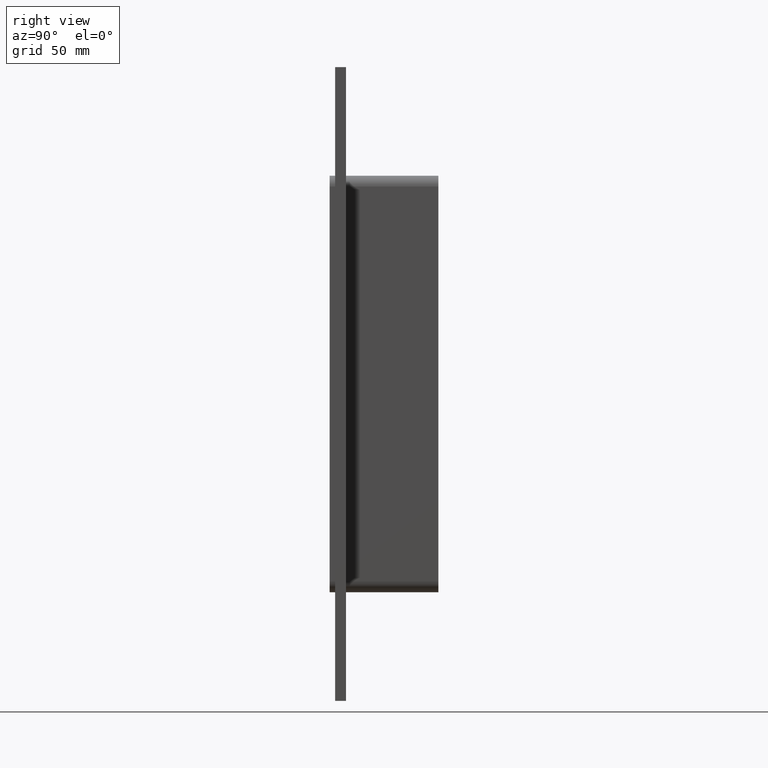
[diagram: clean part render]
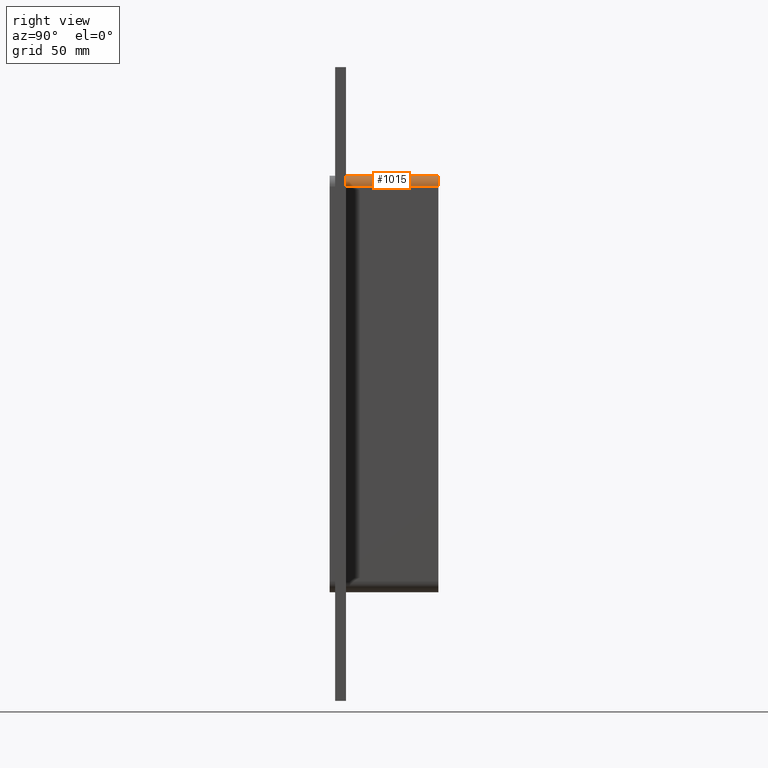
[diagram: same view with one face highlighted and labeled with its STEP entity id]
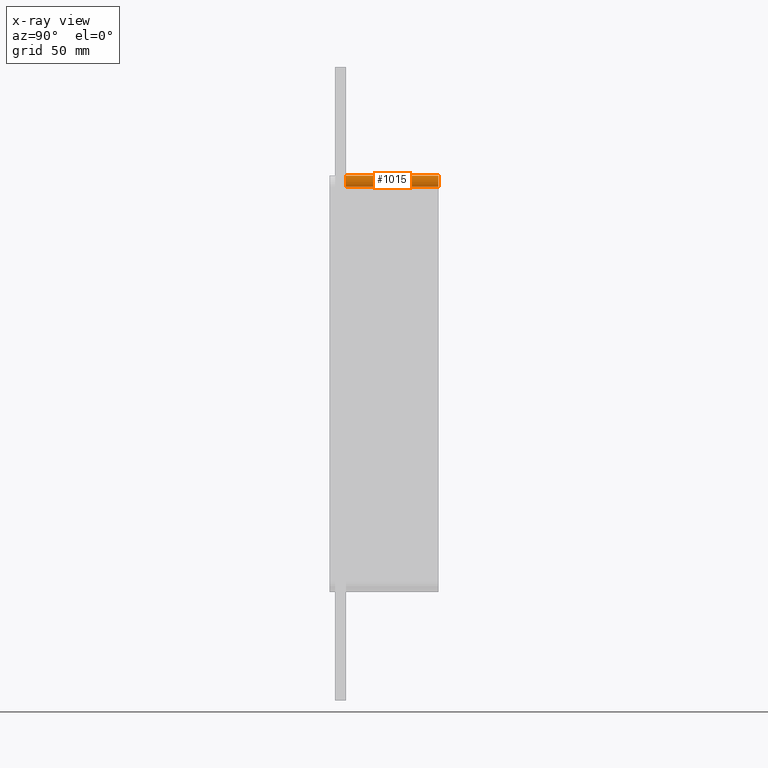
[diagram: x-ray of the same camera — body ghosted, the highlighted face saturated]
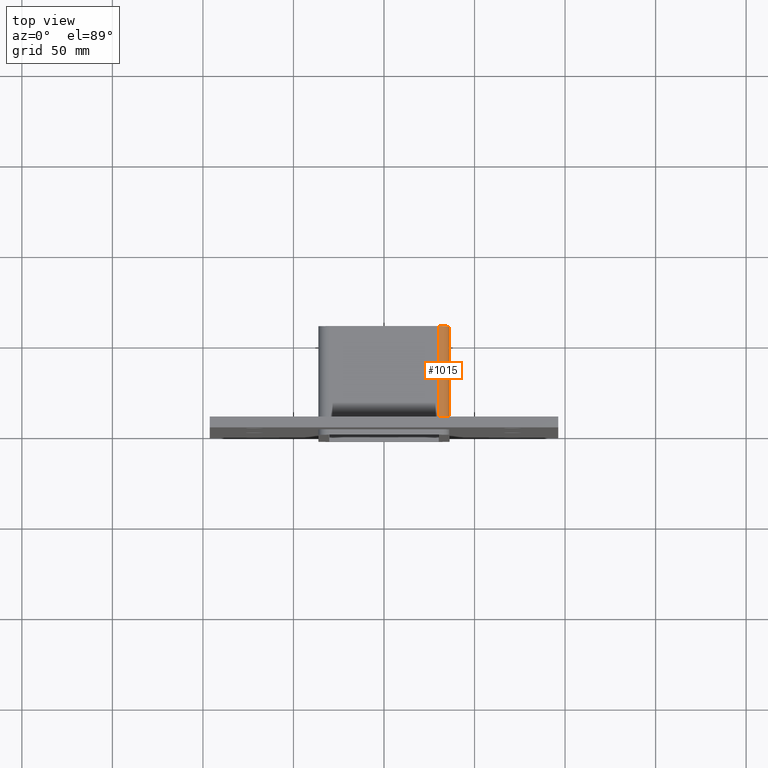
[diagram: same view with one face highlighted and labeled with its STEP entity id]
A machine part, right view. The second image highlights one B-rep face of the part: STEP entity #1015.
The next image is the same camera in x-ray: the body ghosted, the highlighted face saturated — about 0% of this face is hidden behind the body in this view.
A second angle (top view) of the same face is appended — the face is thin or edge-on in the first view.
In plain terms, the highlighted cylindrical surface (edge-blend (fillet) strip) has radius 6 mm, axis along (0, -1, 0).
Its self-contained STEP definition (entity closure, byte-faithful):
#338=CARTESIAN_POINT('',(36.25,6.000000000000001,109.0));
#339=VERTEX_POINT('',#338);
#346=CARTESIAN_POINT('',(30.250000000000004,6.000000000000001,115.0));
#347=VERTEX_POINT('',#346);
#348=CARTESIAN_POINT('',(30.250000000000004,6.000000000000001,109.0));
#349=DIRECTION('',(0.0,1.0,0.0));
#350=DIRECTION('',(0.707106781186548,0.0,0.707106781186547));
#351=AXIS2_PLACEMENT_3D('',#348,#349,#350);
#352=CIRCLE('',#351,6.0);
#353=EDGE_CURVE('',#347,#339,#352,.T.);
#973=CARTESIAN_POINT('',(30.250000000000004,57.0,115.0));
#974=VERTEX_POINT('',#973);
#975=CARTESIAN_POINT('',(30.250000000000004,57.0,115.0));
#976=DIRECTION('',(0.0,-1.0,0.0));
#977=VECTOR('',#976,51.0);
#978=LINE('',#975,#977);
#979=EDGE_CURVE('',#974,#347,#978,.T.);
#991=CARTESIAN_POINT('',(30.250000000000004,0.0,109.0));
#992=DIRECTION('',(0.0,-1.0,0.0));
#993=DIRECTION('',(0.707106781186548,0.0,0.707106781186547));
#994=AXIS2_PLACEMENT_3D('',#991,#992,#993);
#995=CYLINDRICAL_SURFACE('',#994,6.0);
#996=ORIENTED_EDGE('',*,*,#353,.T.);
#997=CARTESIAN_POINT('',(36.25,57.0,109.0));
#998=VERTEX_POINT('',#997);
#999=CARTESIAN_POINT('',(36.25,6.000000000000001,109.0));
#1000=DIRECTION('',(0.0,1.0,0.0));
#1001=VECTOR('',#1000,51.0);
#1002=LINE('',#999,#1001);
#1003=EDGE_CURVE('',#339,#998,#1002,.T.);
#1004=ORIENTED_EDGE('',*,*,#1003,.T.);
#1005=CARTESIAN_POINT('',(30.250000000000004,57.0,109.0));
#1006=DIRECTION('',(0.0,-1.0,0.0));
#1007=DIRECTION('',(0.707106781186548,0.0,0.707106781186547));
#1008=AXIS2_PLACEMENT_3D('',#1005,#1006,#1007);
#1009=CIRCLE('',#1008,6.0);
#1010=EDGE_CURVE('',#998,#974,#1009,.T.);
#1011=ORIENTED_EDGE('',*,*,#1010,.T.);
#1012=ORIENTED_EDGE('',*,*,#979,.T.);
#1013=EDGE_LOOP('',(#996,#1004,#1011,#1012));
#1014=FACE_OUTER_BOUND('',#1013,.T.);
#1015=ADVANCED_FACE('',(#1014),#995,.T.);